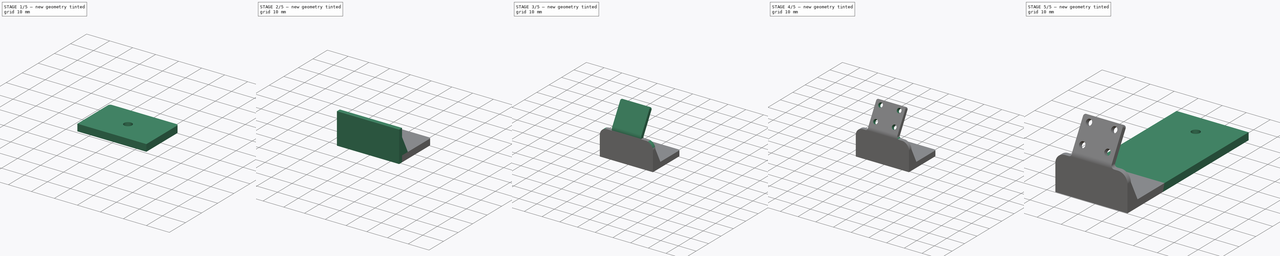
[diagram: build sequence overview — one tinted view per stage of 5, left to right]
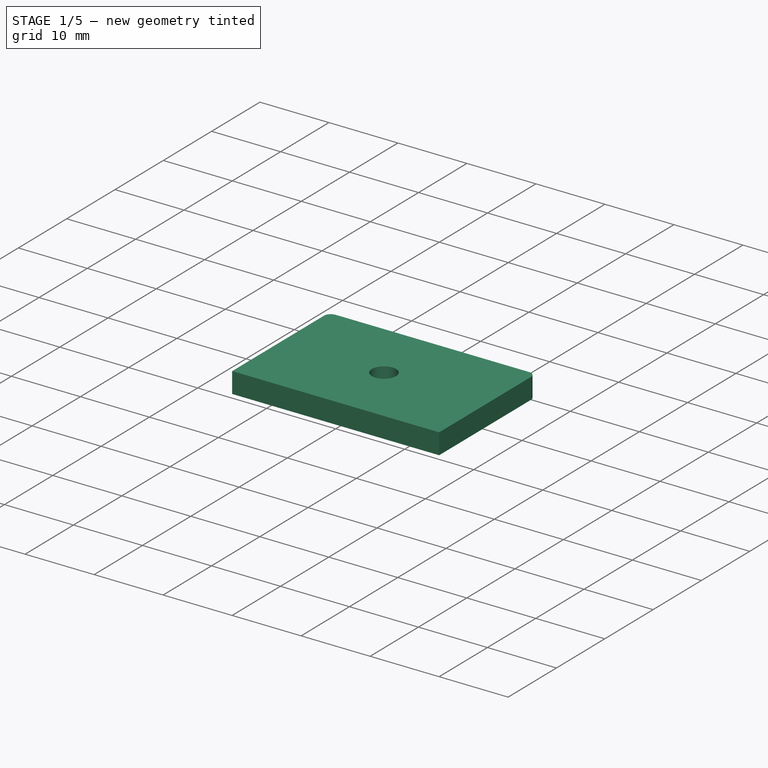
[diagram: stage 1 of 5 — iso view after this stage's code; geometry added in this stage tinted green]
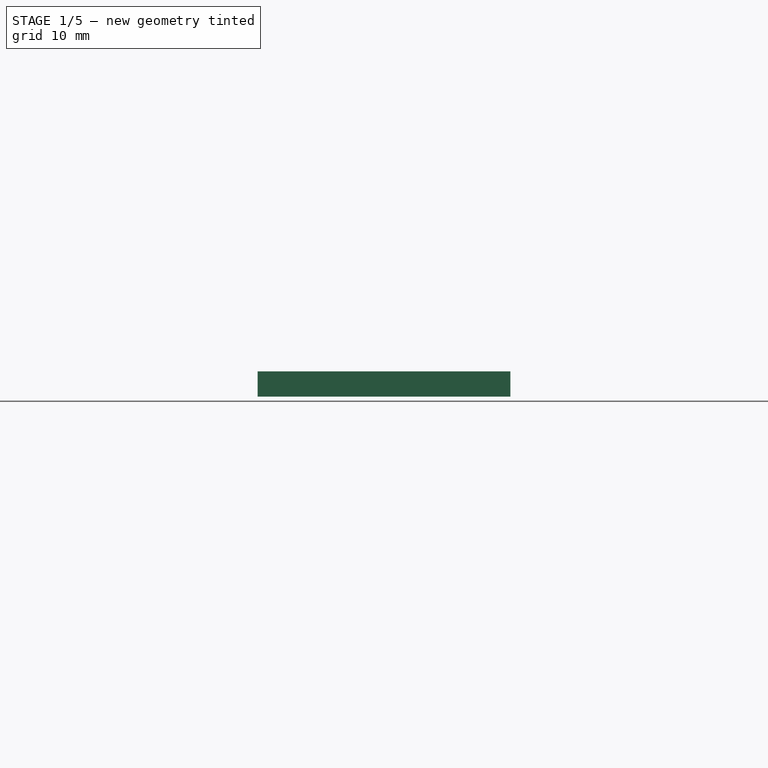
[diagram: stage 1 of 5 — front view after this stage's code; geometry added in this stage tinted green]
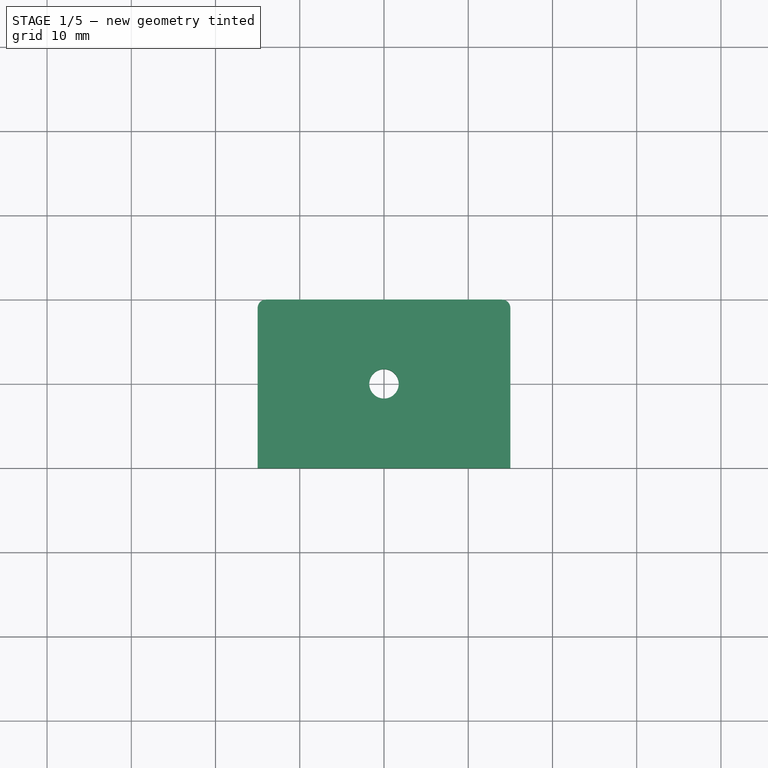
[diagram: stage 1 of 5 — top view after this stage's code; geometry added in this stage tinted green]
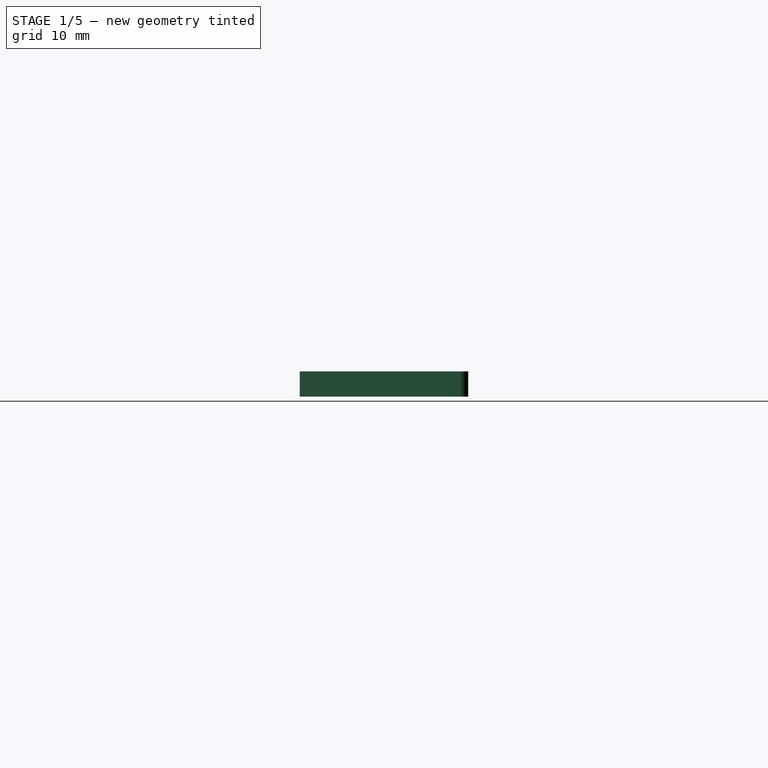
[diagram: stage 1 of 5 — right view after this stage's code; geometry added in this stage tinted green]
FCSTD DOCUMENT  (FreeCAD 0.19R22756 (Git))
Label: LogitechB910Holder
License: All rights reserved
LicenseURL: http://en.wikipedia.org/wiki/All_rights_reserved
objects: Sketcher::SketchObject×10, PartDesign::Pad×7, PartDesign::Fillet×4, PartDesign::Pocket×3, PartDesign::Plane×1, PartDesign::Mirrored×1, PartDesign::Body×1
note: 41 computed .brp shape members not serialized (recipe doc carries the construction recipe); baked Part::Feature solids carry a one-line shape summary decoded from their .brp

FEATURE [Sketcher::SketchObject] Sketch
  MapMode = 5
  Support = -> [XY_Plane]
  expr: Constraints[11] = -Constraints[10] / 2
  expr: Constraints[9] = -Constraints[8] / 2
  sketch-geometry (4):
    g0: LineSegment StartX=-15 StartY=-10 StartZ=0 EndX=15 EndY=-10 EndZ=0
    g1: LineSegment StartX=15 StartY=-10 StartZ=0 EndX=15 EndY=10 EndZ=0
    g2: LineSegment StartX=15 StartY=10 StartZ=0 EndX=-15 EndY=10 EndZ=0
    g3: LineSegment StartX=-15 StartY=10 StartZ=0 EndX=-15 EndY=-10 EndZ=0
  constraints (12):
    c: Coincident(g0,g1)
    c: Coincident(g1,g2)
    c: Coincident(g2,g3)
    c: Coincident(g3,g0)
    c: Horizontal(g0)
    c: Horizontal(g2)
    c: Vertical(g1)
    c: Vertical(g3)
    c: Distance(g2) = 30
    c: DistanceX(g-2,g2) = -15
    c: Distance(g1) = 20
    c: DistanceY(g-1,g0) = -10
FEATURE [PartDesign::Pad] Pad
  Direction = (1,1,1)
  Length = 3
  Length2 = 100
  Profile = -> Sketch
  Type = 0
FEATURE [Sketcher::SketchObject] Sketch001
  MapMode = 5
  Placement = pos=(0,0,3) rot=(0,0,1;0rad)
  Support = -> [Pad]
  sketch-geometry (1):
    g0: Circle CenterX=0 CenterY=0 CenterZ=0 NormalX=0 NormalY=0 NormalZ=1 AngleXU=0 Radius=1.75
  constraints (2):
    c: Coincident(g0,g-1)
    c: Diameter(g0) = 3.5
FEATURE [PartDesign::Plane] DatumPlane
  AttachmentOffset = pos=(0,0,8.25) rot=(0,0,1;0rad)
  Length = 98.5111
  MapMode = 5
  Placement = pos=(8.25,-1.8e-15,1.8e-15) rot=(0.57735,0.57735,0.57735;2.0944rad)
  ResizeMode = 0
  Support = -> [YZ_Plane]
  Width = 67.2025
FEATURE [PartDesign::Pocket] Pocket
  BaseFeature = -> Pad
  Length = 5
  Length2 = 100
  Profile = -> Sketch001
  Type = 1
FEATURE [PartDesign::Fillet] Fillet
  Base = -> Pocket [Edge8,Edge5]
  BaseFeature = -> Pocket
  Radius = 1
  SupportTransform = false
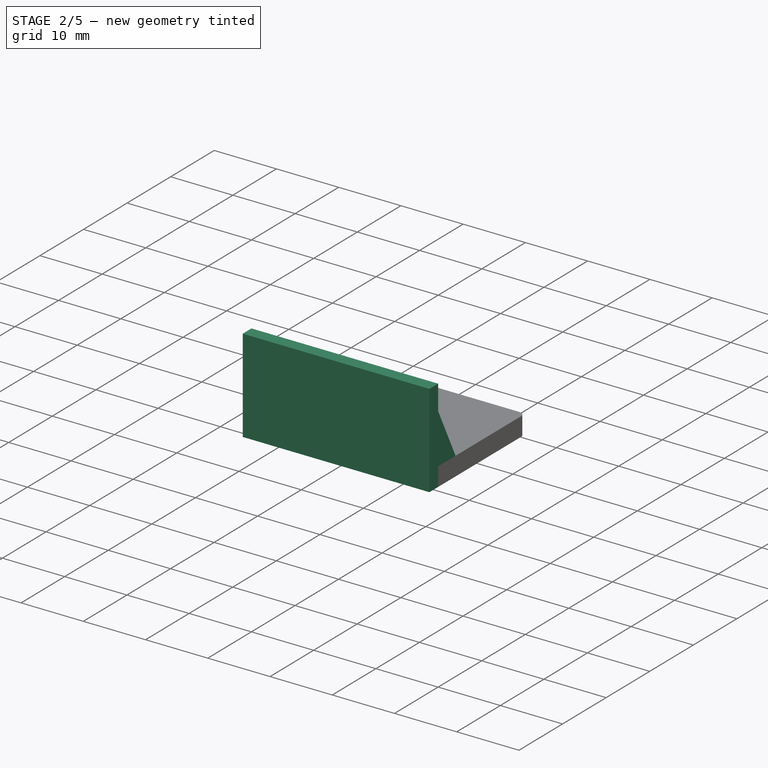
[diagram: stage 2 of 5 — iso view after this stage's code; geometry added in this stage tinted green]
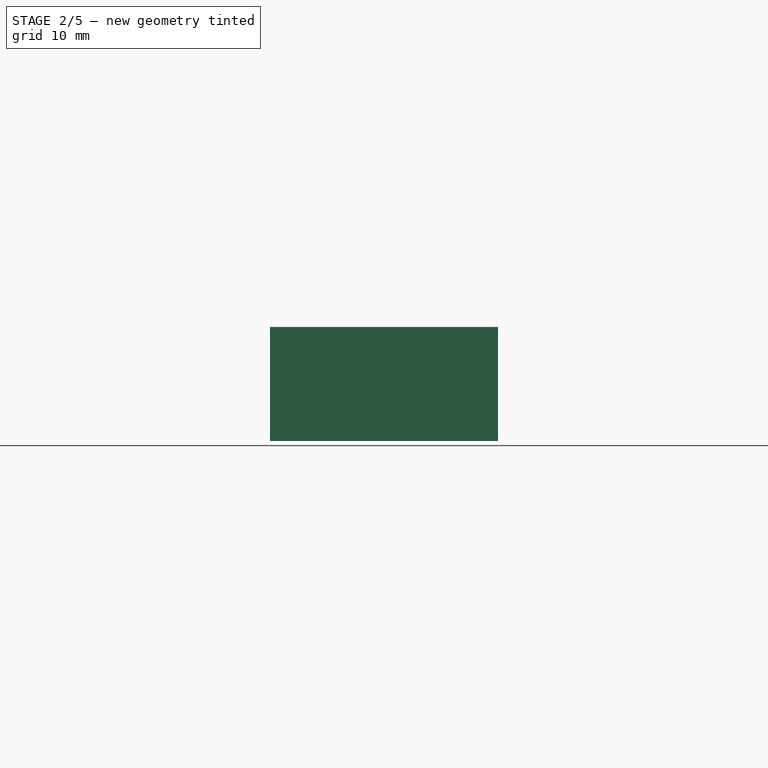
[diagram: stage 2 of 5 — front view after this stage's code; geometry added in this stage tinted green]
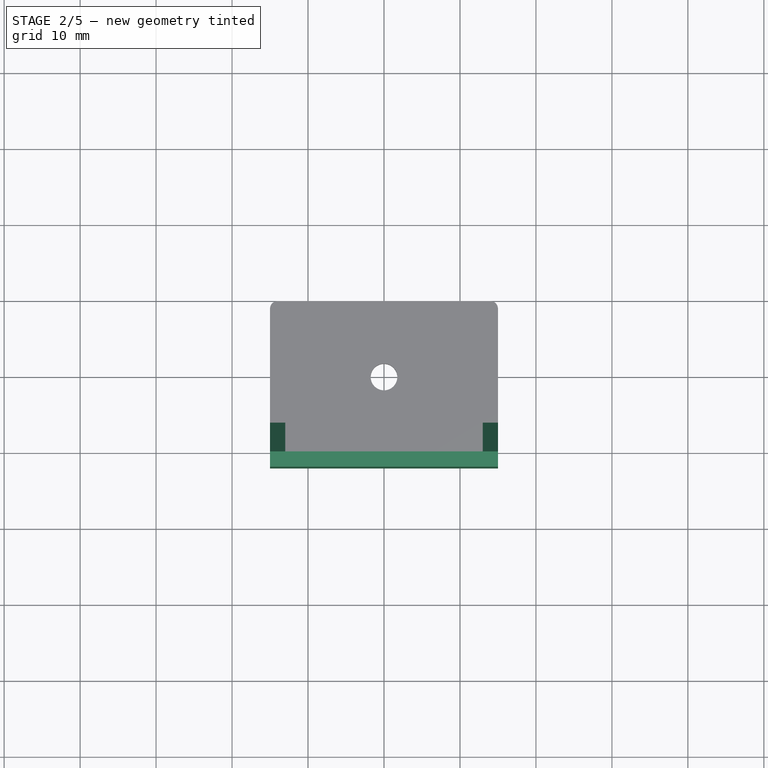
[diagram: stage 2 of 5 — top view after this stage's code; geometry added in this stage tinted green]
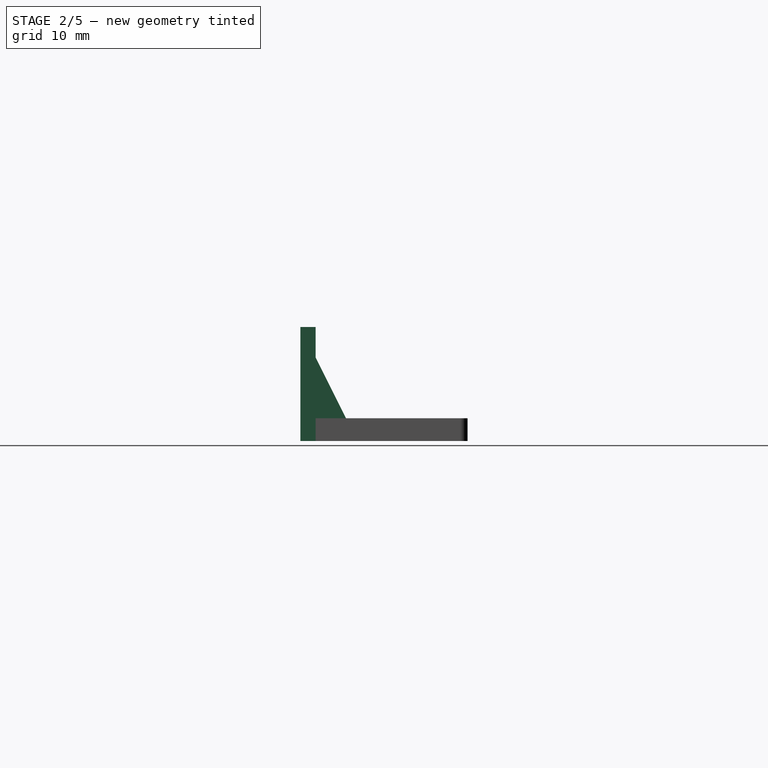
[diagram: stage 2 of 5 — right view after this stage's code; geometry added in this stage tinted green]
FEATURE [Sketcher::SketchObject] Sketch002
  ExternalGeometry = -> [Fillet]
  MapMode = 5
  Placement = pos=(0,0,0) rot=(1,0,0;3.14159rad)
  Support = -> [Fillet]
  sketch-geometry (4):
    g0: LineSegment StartX=-15 StartY=10 StartZ=0 EndX=15 EndY=10 EndZ=0
    g1: LineSegment StartX=15 StartY=10 StartZ=0 EndX=15 EndY=12 EndZ=0
    g2: LineSegment StartX=15 StartY=12 StartZ=0 EndX=-15 EndY=12 EndZ=0
    g3: LineSegment StartX=-15 StartY=12 StartZ=0 EndX=-15 EndY=10 EndZ=0
  constraints (12):
    c: Coincident(g0,g1)
    c: Coincident(g1,g2)
    c: Coincident(g2,g3)
    c: Coincident(g3,g0)
    c: Horizontal(g0)
    c: Horizontal(g2)
    c: Vertical(g1)
    c: Vertical(g3)
    c: PointOnObject(g0,g-4)
    c: PointOnObject(g-4,g3)
    c: PointOnObject(g-5,g1)
    c: Distance(g0,g2) = 2
FEATURE [PartDesign::Pad] Pad001
  BaseFeature = -> Fillet
  Direction = (1,1,1)
  Length = 15
  Length2 = 100
  Profile = -> Sketch002
  Reversed = true
  Type = 0
FEATURE [Sketcher::SketchObject] Sketch003
  ExternalGeometry = -> [Pad001]
  MapMode = 5
  Placement = pos=(15,0,0) rot=(0.57735,0.57735,0.57735;2.0944rad)
  Support = -> [Pad001]
  sketch-geometry (3):
    g0: LineSegment StartX=-10 StartY=11 StartZ=0 EndX=-6 EndY=3 EndZ=0
    g1: LineSegment StartX=-6 StartY=3 StartZ=0 EndX=-10 EndY=3 EndZ=0
    g2: LineSegment StartX=-10 StartY=3 StartZ=0 EndX=-10 EndY=11 EndZ=0
  constraints (8):
    c: PointOnObject(g0,g-3)
    c: PointOnObject(g0,g-4)
    c: Coincident(g1,g0)
    c: Coincident(g1,g-4)
    c: Coincident(g2,g1)
    c: Coincident(g2,g0)
    c: Distance(g1) = 4
    c: Distance(g2) = 8
FEATURE [PartDesign::Pad] Pad002
  BaseFeature = -> Pad001
  Direction = (1,1,1)
  Length = 2
  Length2 = 100
  Profile = -> Sketch003
  Reversed = true
  Type = 0
FEATURE [PartDesign::Mirrored] Mirrored
  BaseFeature = -> Pad002
  MirrorPlane = -> YZ_Plane
  Originals = -> [Pad002]
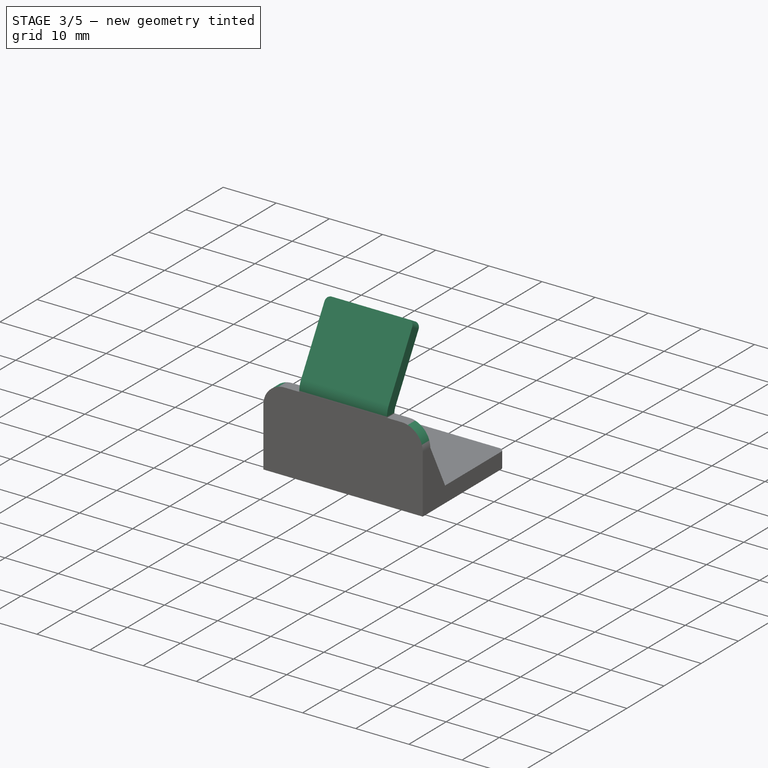
[diagram: stage 3 of 5 — iso view after this stage's code; geometry added in this stage tinted green]
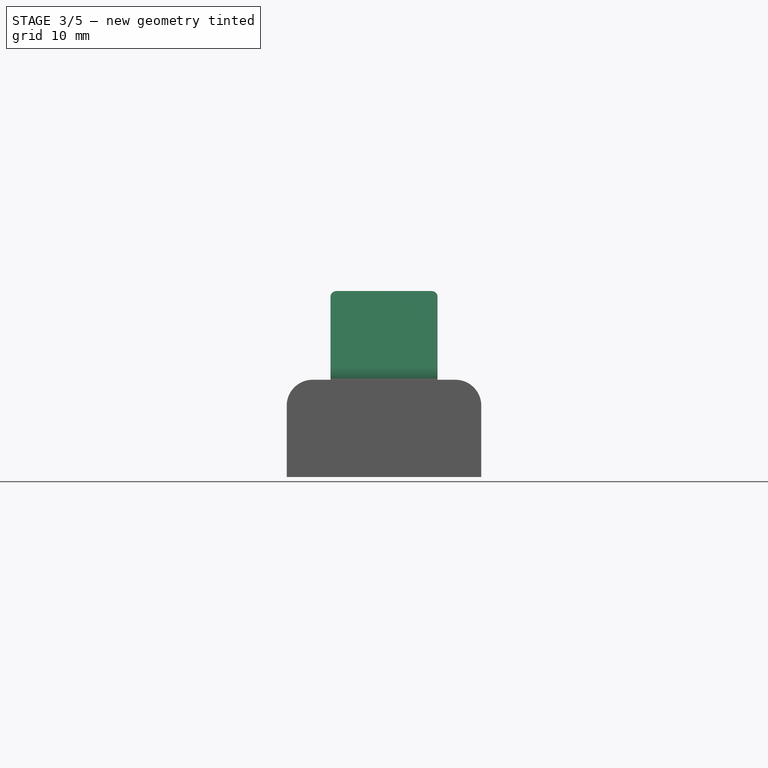
[diagram: stage 3 of 5 — front view after this stage's code; geometry added in this stage tinted green]
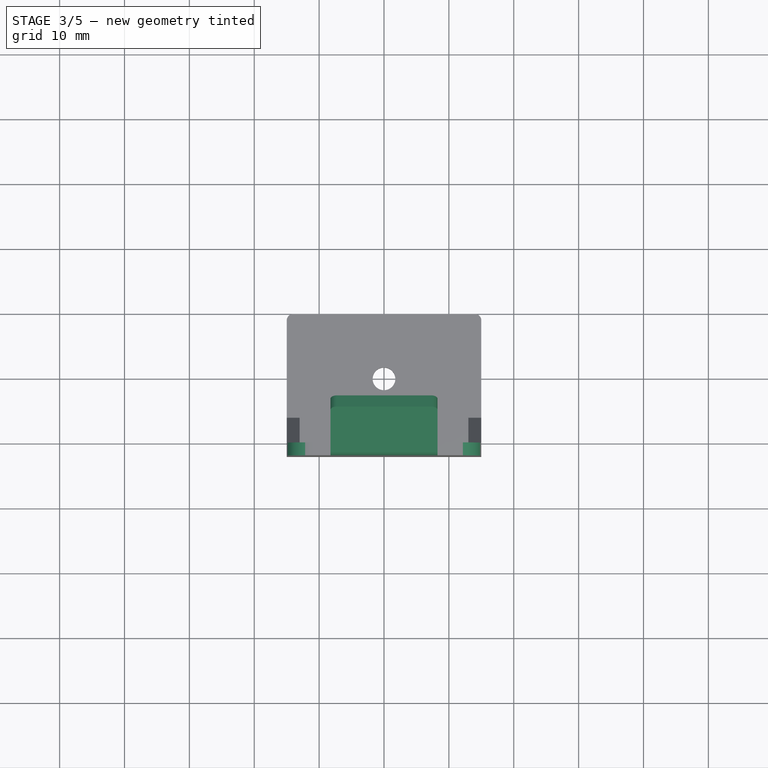
[diagram: stage 3 of 5 — top view after this stage's code; geometry added in this stage tinted green]
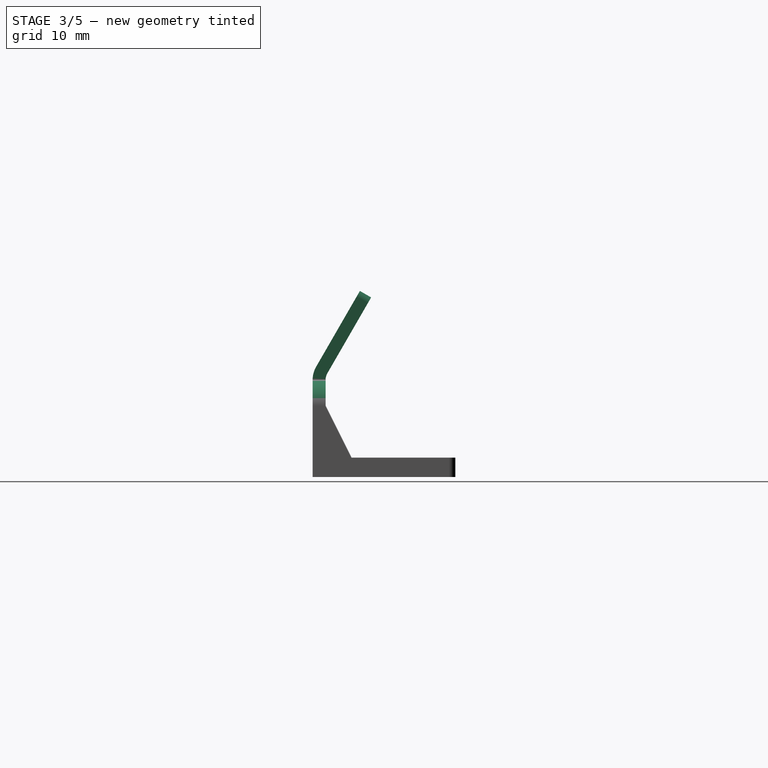
[diagram: stage 3 of 5 — right view after this stage's code; geometry added in this stage tinted green]
FEATURE [PartDesign::Fillet] Fillet001
  Base = -> Mirrored [Edge18,Edge44]
  BaseFeature = -> Mirrored
  Radius = 4
  SupportTransform = false
FEATURE [Sketcher::SketchObject] Sketch006
  ExternalGeometry = -> [Fillet001]
  MapMode = 5
  Placement = pos=(8.25,-1.8e-15,1.8e-15) rot=(0.57735,0.57735,0.57735;2.0944rad)
  Support = -> [DatumPlane]
  sketch-geometry (7):
    g0: ArcOfCircle CenterX=-8 CenterY=15 CenterZ=0 NormalX=0 NormalY=0 NormalZ=1 AngleXU=0 Radius=2 StartAngle=2.61799 EndAngle=3.14159
    g1: ArcOfCircle CenterX=-8 CenterY=15 CenterZ=0 NormalX=0 NormalY=0 NormalZ=1 AngleXU=0 Radius=4 StartAngle=2.61799 EndAngle=3.14159
    g2: LineSegment [constr] StartX=-11.4641 StartY=17 StartZ=0 EndX=-9.73205 EndY=16 EndZ=0
    g3: LineSegment StartX=-12 StartY=15 StartZ=0 EndX=-10 EndY=15 EndZ=0
    g4: LineSegment StartX=-11.4641 StartY=17 StartZ=0 EndX=-4.7141 EndY=28.6913 EndZ=0
    g5: LineSegment StartX=-4.7141 StartY=28.6913 StartZ=0 EndX=-2.98205 EndY=27.6913 EndZ=0
    g6: LineSegment StartX=-2.98205 StartY=27.6913 StartZ=0 EndX=-9.73205 EndY=16 EndZ=0
  constraints (17):
    c: Coincident(g0,g-4)
    c: Coincident(g1,g0)
    c: Coincident(g1,g-5)
    c: Horizontal(g0,g0)
    c: Coincident(g2,g1)
    c: Coincident(g2,g0)
    c: Perpendicular(g1,g2)
    c: Distance(g0,g0) = 2
    c: Angle(g2,g-4) = 0.523599
    c: Coincident(g3,g1)
    c: Coincident(g3,g0)
    c: Coincident(g5,g4)
    c: Coincident(g6,g5)
    c: Perpendicular(g4,g5)
    c: Tangent(g4,g1) = 1.5708
    c: Tangent(g6,g0) = -1.5708
    c: Distance(g6) = 13.5
FEATURE [PartDesign::Pad] Pad003
  BaseFeature = -> Fillet001
  Direction = (1,1,1)
  Length = 16.5
  Length2 = 100
  Profile = -> Sketch006
  Reversed = true
  Type = 0
FEATURE [PartDesign::Fillet] Fillet002
  Base = -> Pad003 [Edge60,Edge65]
  BaseFeature = -> Pad003
  Radius = 1
  SupportTransform = false
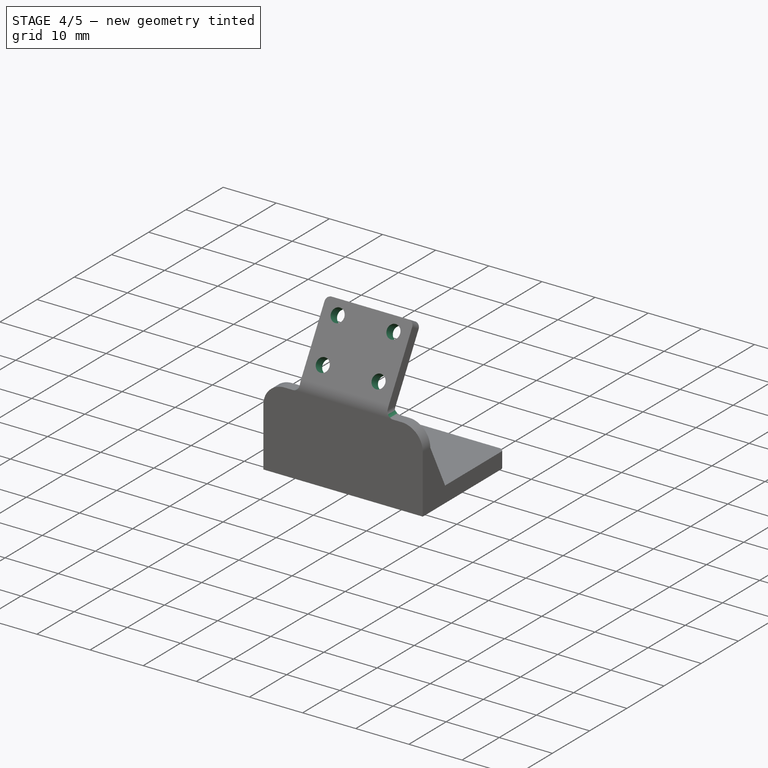
[diagram: stage 4 of 5 — iso view after this stage's code; geometry added in this stage tinted green]
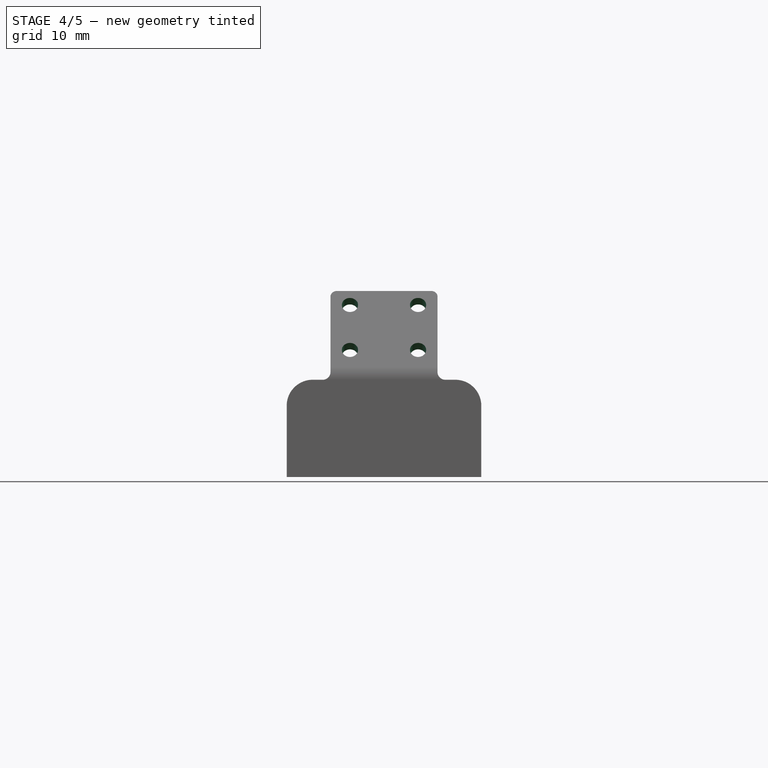
[diagram: stage 4 of 5 — front view after this stage's code; geometry added in this stage tinted green]
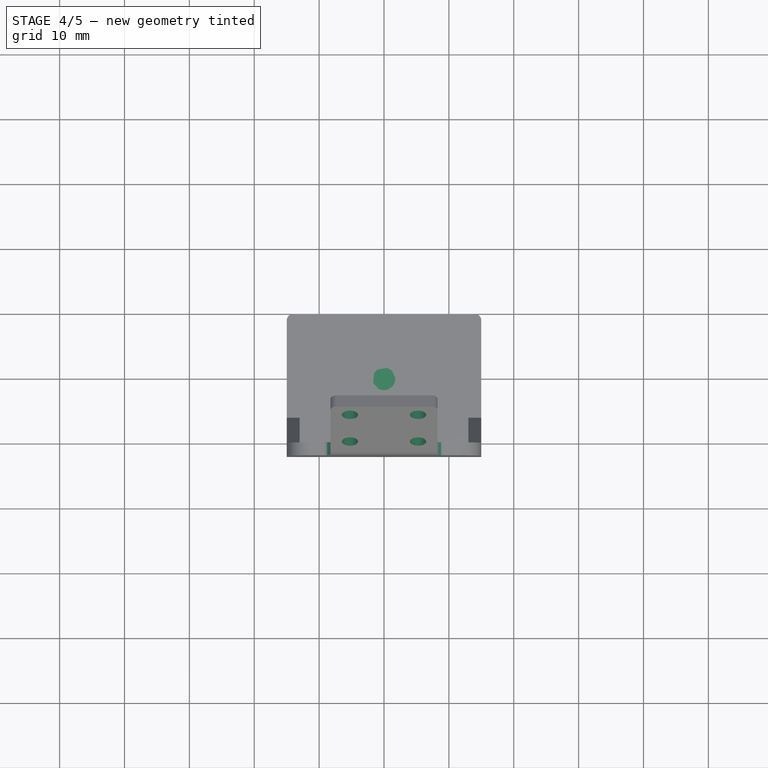
[diagram: stage 4 of 5 — top view after this stage's code; geometry added in this stage tinted green]
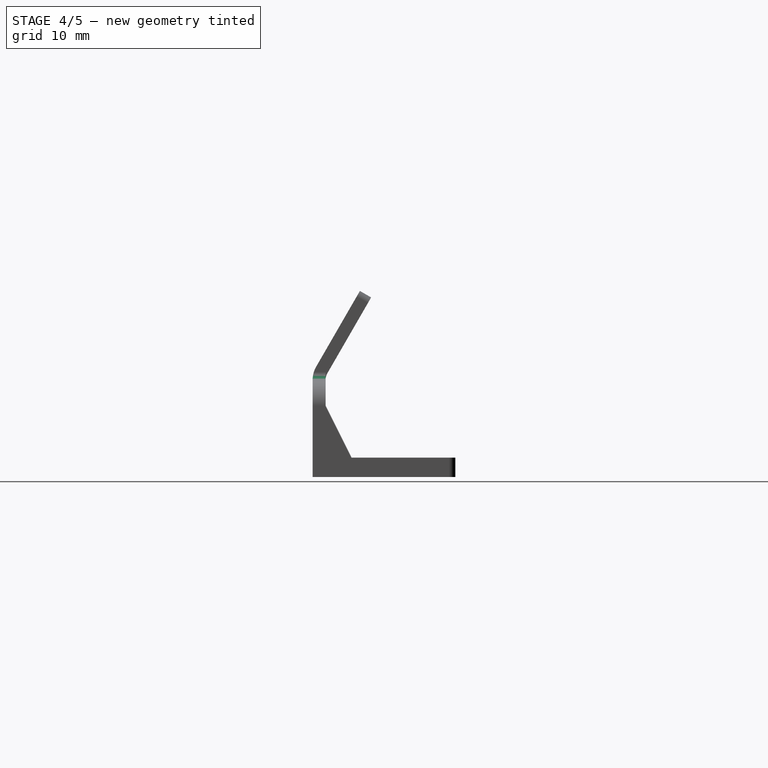
[diagram: stage 4 of 5 — right view after this stage's code; geometry added in this stage tinted green]
FEATURE [Sketcher::SketchObject] Sketch008
  ExternalGeometry = -> [Fillet002]
  MapMode = 5
  Placement = pos=(-2.8e-15,-15.9593,9.2141) rot=(1,0,0;1.0472rad)
  Support = -> [Fillet002]
  expr: Constraints[5] = Constraints[4]
  expr: Constraints[6] = Constraints[4]
  expr: Constraints[7] = Constraints[4]
  expr: Constraints[9] = -Constraints[8] / 2
  sketch-geometry (4):
    g0: Circle CenterX=-5.25 CenterY=19.9904 CenterZ=0 NormalX=0 NormalY=0 NormalZ=1 AngleXU=0 Radius=1.25
    g1: Circle CenterX=5.25 CenterY=19.9904 CenterZ=0 NormalX=0 NormalY=0 NormalZ=1 AngleXU=0 Radius=1.25
    g2: Circle CenterX=-5.25 CenterY=11.9904 CenterZ=0 NormalX=0 NormalY=0 NormalZ=1 AngleXU=0 Radius=1.25
    g3: Circle CenterX=5.25 CenterY=11.9904 CenterZ=0 NormalX=0 NormalY=0 NormalZ=1 AngleXU=0 Radius=1.25
  constraints (12):
    c: Horizontal(g0,g1)
    c: Vertical(g2,g0)
    c: Vertical(g1,g3)
    c: Horizontal(g2,g3)
    c: Diameter(g0) = 2.5
    c: Diameter(g1) = 2.5
    c: Diameter(g2) = 2.5
    c: Diameter(g3) = 2.5
    c: DistanceX(g0,g1) = 10.5
    c: DistanceX(g-2,g0) = -5.25
    c: DistanceY(g2,g0) = 8
    c: Distance(g0,g-4) = 2.5
FEATURE [PartDesign::Pocket] Pocket001
  BaseFeature = -> Fillet002
  Length = 0
  Length2 = 100
  Profile = -> Sketch008
  Type = 3
  UpToFace = -> Fillet002 [Face5]
FEATURE [PartDesign::Fillet] Fillet003
  Base = -> Pocket001 [Edge5,Edge35]
  BaseFeature = -> Pocket001
  Radius = 1.2
  SupportTransform = false
FEATURE [Sketcher::SketchObject] Sketch009
  ExternalGeometry = -> [Fillet003]
  MapMode = 5
  Placement = pos=(0,0,3) rot=(0,0,1;0rad)
  Support = -> [Fillet003]
  sketch-geometry (1):
    g0: Circle CenterX=0 CenterY=0 CenterZ=0 NormalX=0 NormalY=0 NormalZ=1 AngleXU=0 Radius=1.75
  constraints (2):
    c: Coincident(g0,g-1)
    c: Equal(g0,g-3)
FEATURE [PartDesign::Pad] Pad004
  BaseFeature = -> Fillet003
  Direction = (1,1,1)
  Length = 10
  Length2 = 100
  Profile = -> Sketch009
  Type = 3
  UpToFace = -> Fillet003 [Face38]
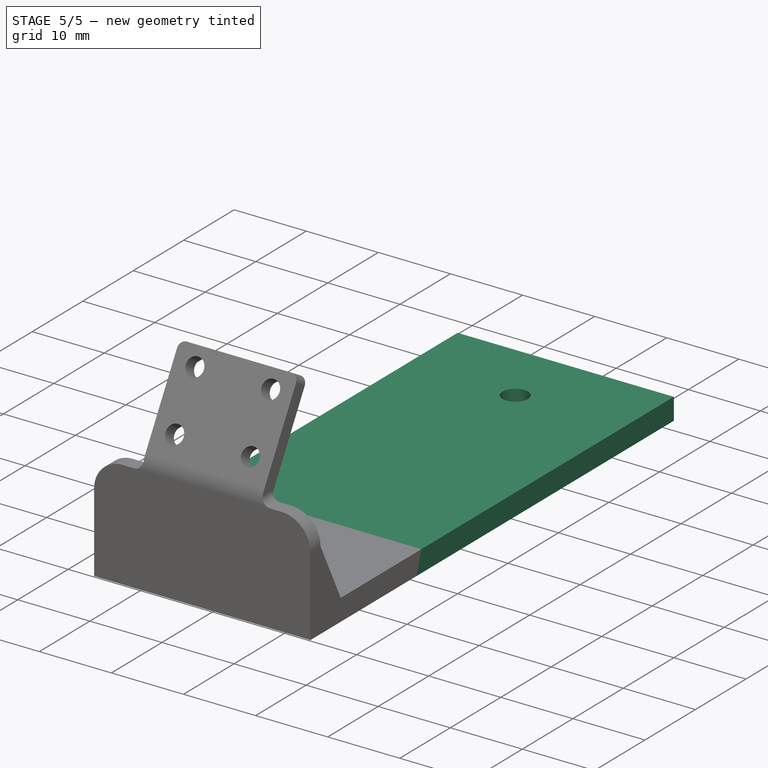
[diagram: stage 5 of 5 — iso view after this stage's code; geometry added in this stage tinted green]
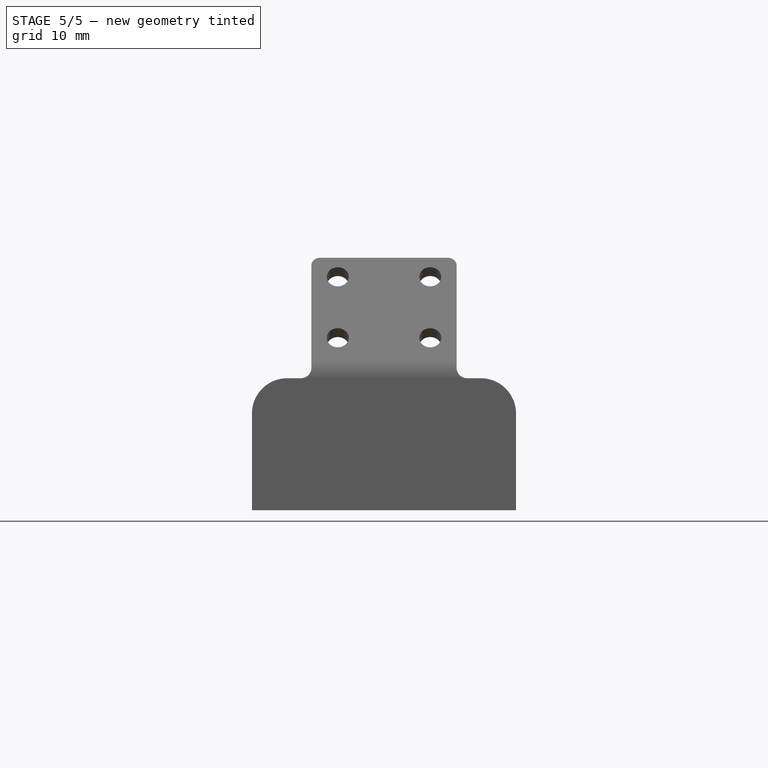
[diagram: stage 5 of 5 — front view after this stage's code; geometry added in this stage tinted green]
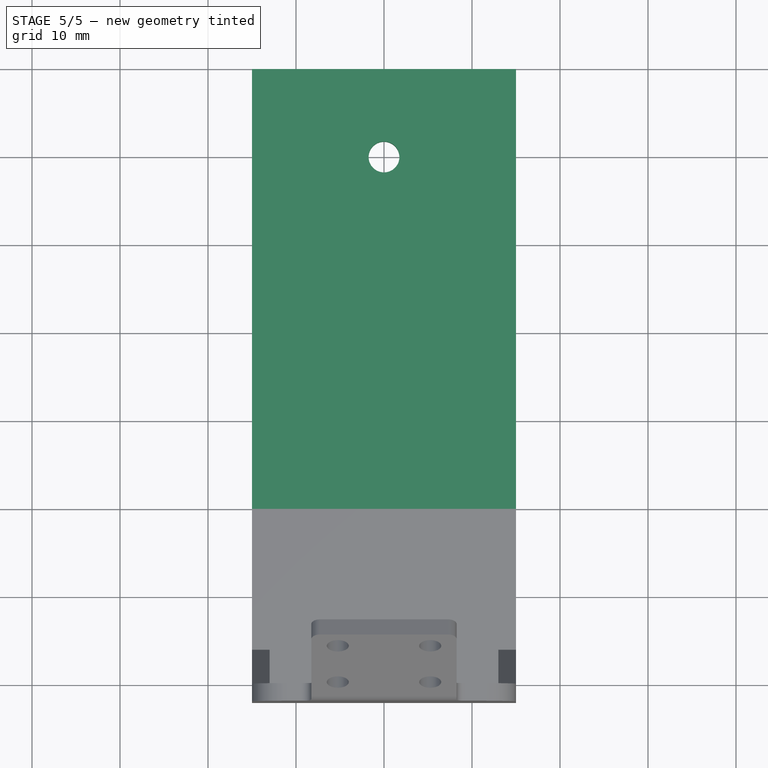
[diagram: stage 5 of 5 — top view after this stage's code; geometry added in this stage tinted green]
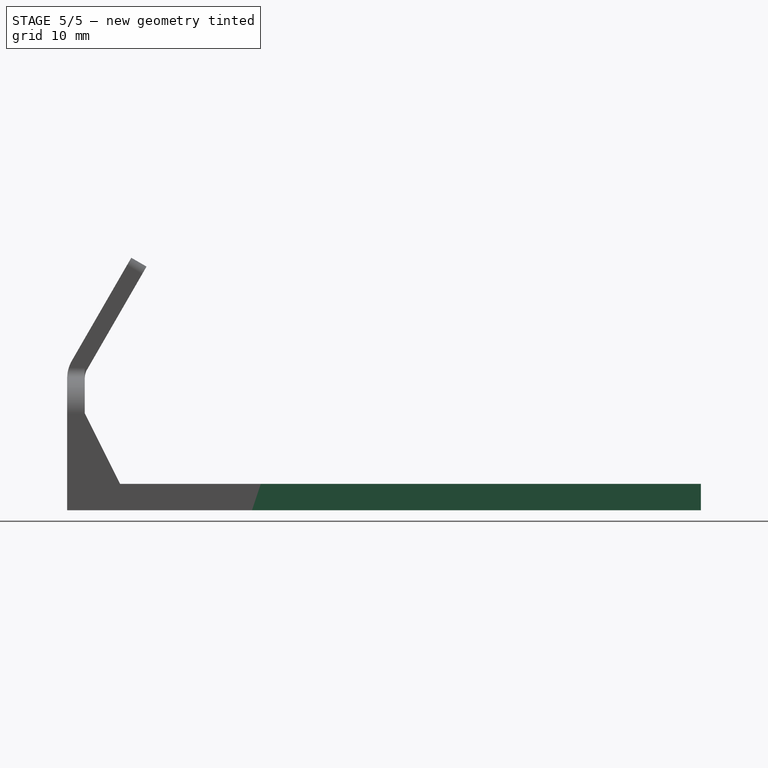
[diagram: stage 5 of 5 — right view after this stage's code; geometry added in this stage tinted green]
FEATURE [Sketcher::SketchObject] Sketch010
  ExternalGeometry = -> [Pad004]
  MapMode = 5
  Placement = pos=(0,10,0) rot=(0,0.707107,0.707107;3.14159rad)
  Support = -> [Pad004]
  sketch-geometry (4):
    g0: LineSegment StartX=-15 StartY=3 StartZ=0 EndX=15 EndY=3 EndZ=0
    g1: LineSegment StartX=15 StartY=3 StartZ=0 EndX=15 EndY=0 EndZ=0
    g2: LineSegment StartX=15 StartY=0 StartZ=0 EndX=-15 EndY=0 EndZ=0
    g3: LineSegment StartX=-15 StartY=0 StartZ=0 EndX=-15 EndY=3 EndZ=0
  constraints (8):
    c: Coincident(g0,g-4)
    c: Coincident(g0,g-7)
    c: Coincident(g1,g0)
    c: Coincident(g1,g-7)
    c: Coincident(g2,g1)
    c: Coincident(g2,g-3)
    c: Coincident(g3,g2)
    c: Coincident(g3,g0)
FEATURE [PartDesign::Pad] Pad005
  BaseFeature = -> Pad004
  Direction = (1,1,1)
  Length = 2
  Length2 = 100
  Profile = -> Sketch010
  Reversed = true
  Type = 0
FEATURE [Sketcher::SketchObject] Sketch011
  ExternalGeometry = -> [Pad005]
  MapMode = 5
  Placement = pos=(0,10,0) rot=(0,0.707107,0.707107;3.14159rad)
  Support = -> [Pad005]
  sketch-geometry (4):
    g0: LineSegment StartX=-15 StartY=3 StartZ=0 EndX=15 EndY=3 EndZ=0
    g1: LineSegment StartX=15 StartY=3 StartZ=0 EndX=15 EndY=0 EndZ=0
    g2: LineSegment StartX=15 StartY=0 StartZ=0 EndX=-15 EndY=0 EndZ=0
    g3: LineSegment StartX=-15 StartY=0 StartZ=0 EndX=-15 EndY=3 EndZ=0
  constraints (8):
    c: Coincident(g0,g-4)
    c: Coincident(g0,g-7)
    c: Coincident(g1,g0)
    c: Coincident(g1,g-8)
    c: Coincident(g2,g1)
    c: Coincident(g2,g-10)
    c: Coincident(g3,g2)
    c: Coincident(g3,g0)
FEATURE [PartDesign::Pad] Pad006
  BaseFeature = -> Pad005
  Direction = (1,1,1)
  Length = 50
  Length2 = 100
  Profile = -> Sketch011
  Type = 0
FEATURE [Sketcher::SketchObject] Sketch012
  ExternalGeometry = -> [Pad006]
  MapMode = 5
  Placement = pos=(0,0,2.2e-15) rot=(1,0,0;3.14159rad)
  Support = -> [Pad006]
  sketch-geometry (1):
    g0: Circle CenterX=0 CenterY=-50 CenterZ=0 NormalX=0 NormalY=0 NormalZ=1 AngleXU=0 Radius=1.75
  constraints (3):
    c: PointOnObject(g0,g-2)
    c: Diameter(g0) = 3.5
    c: Distance(g0,g-4) = 10
FEATURE [PartDesign::Pocket] Pocket002
  BaseFeature = -> Pad006
  Length = 5
  Length2 = 100
  Profile = -> Sketch012
  Type = 1
FEATURE [PartDesign::Body] Body
  Group = -> [Sketch,Pad,Sketch001,Pocket,Fillet,Sketch002,Pad001,Sketch003,Pad002,Mirrored,Fillet001,DatumPlane,Sketch006,Pad003,Fillet002,Sketch008,Pocket001,Fillet003,Sketch009,Pad004,Sketch010,Pad005,Sketch011,Pad006,Sketch012,Pocket002]
  Origin = -> Origin
  Tip = -> Pocket002
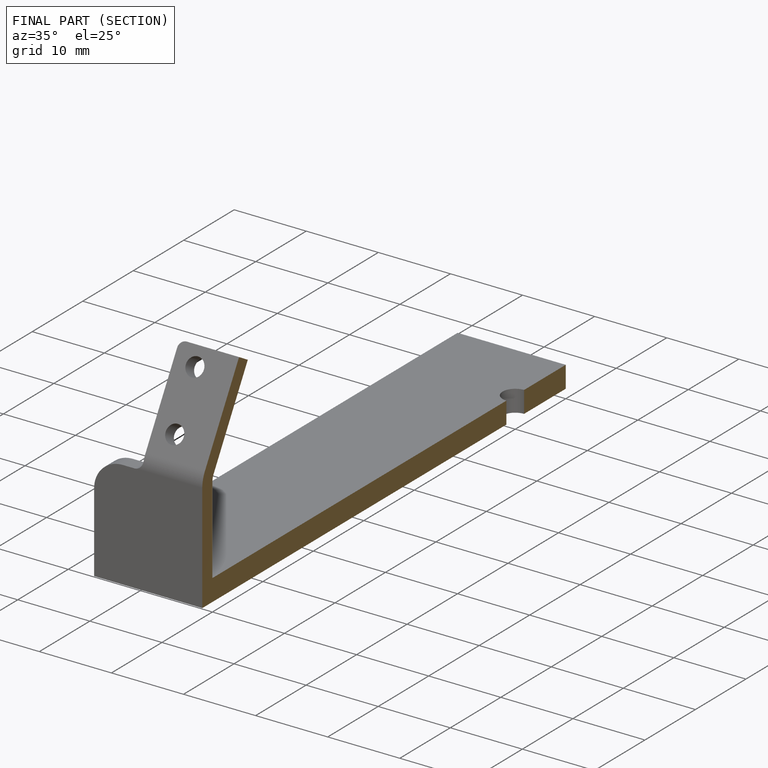
[diagram: finished part — half-section view (interior)]
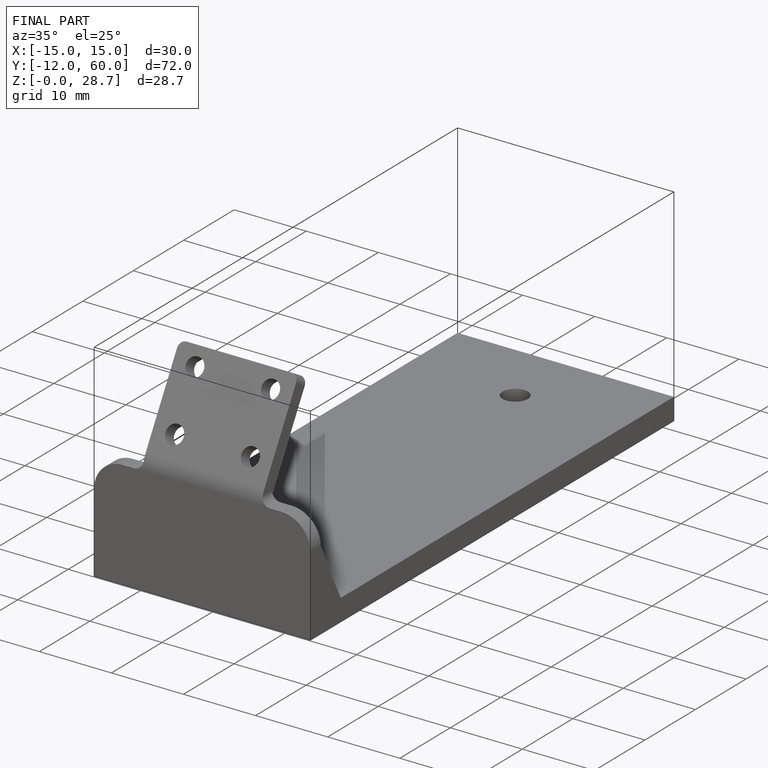
[diagram: finished part — iso view with bounding-box wireframe]
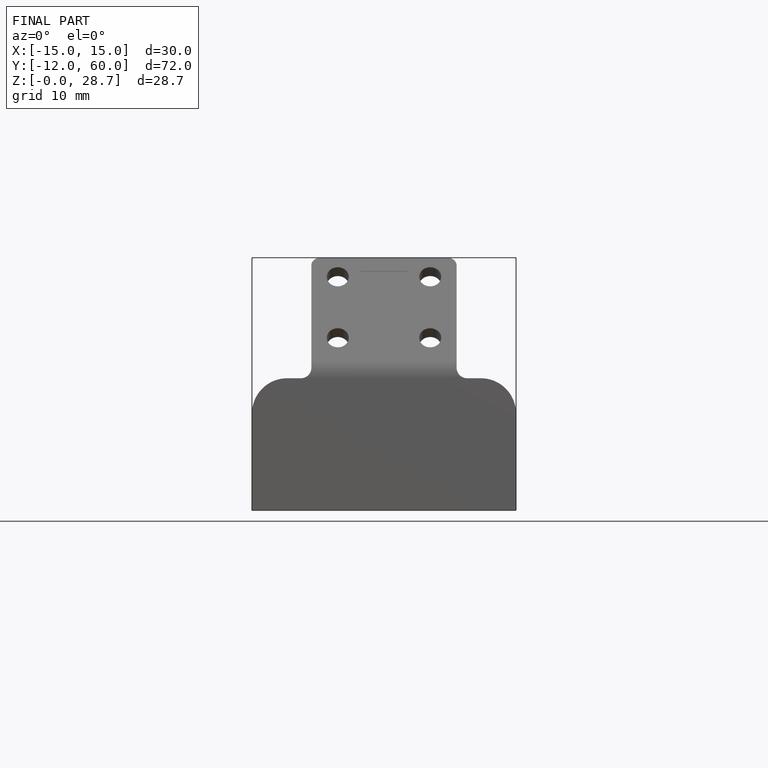
[diagram: finished part — front view with bounding-box wireframe]
